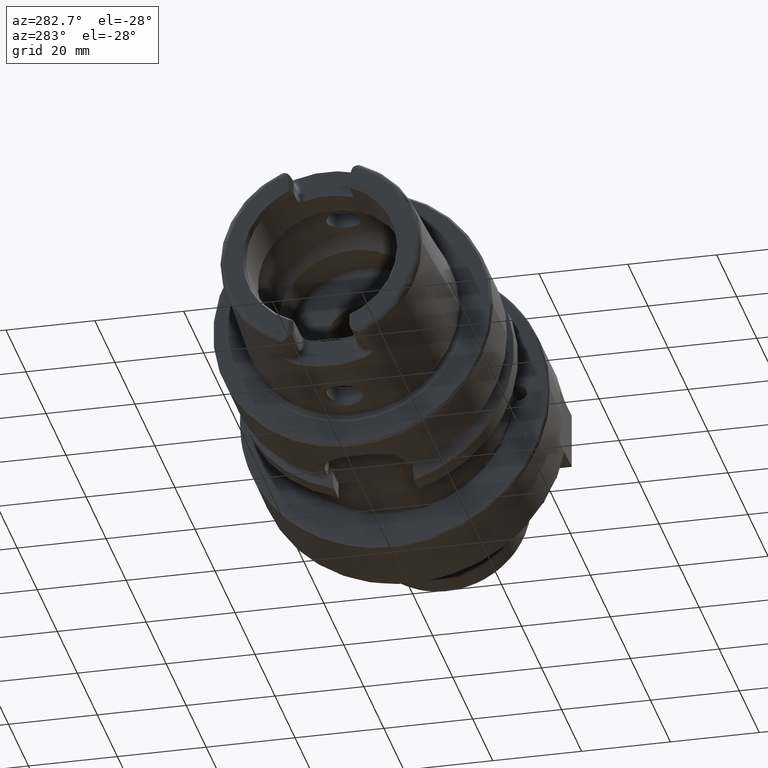
[diagram: clean part render]
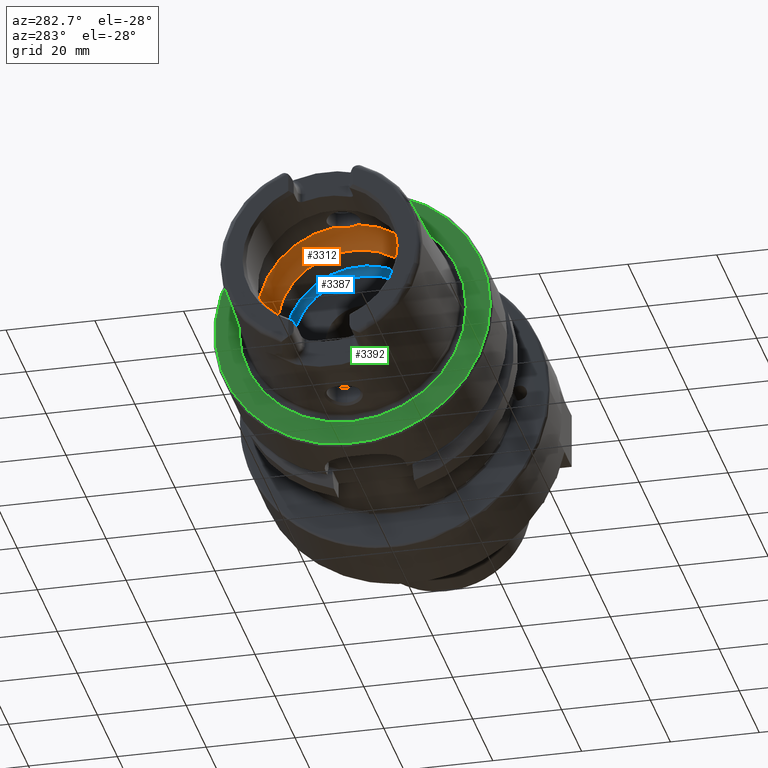
[diagram: same view with three faces highlighted in distinct colors, each labeled with its STEP entity id]
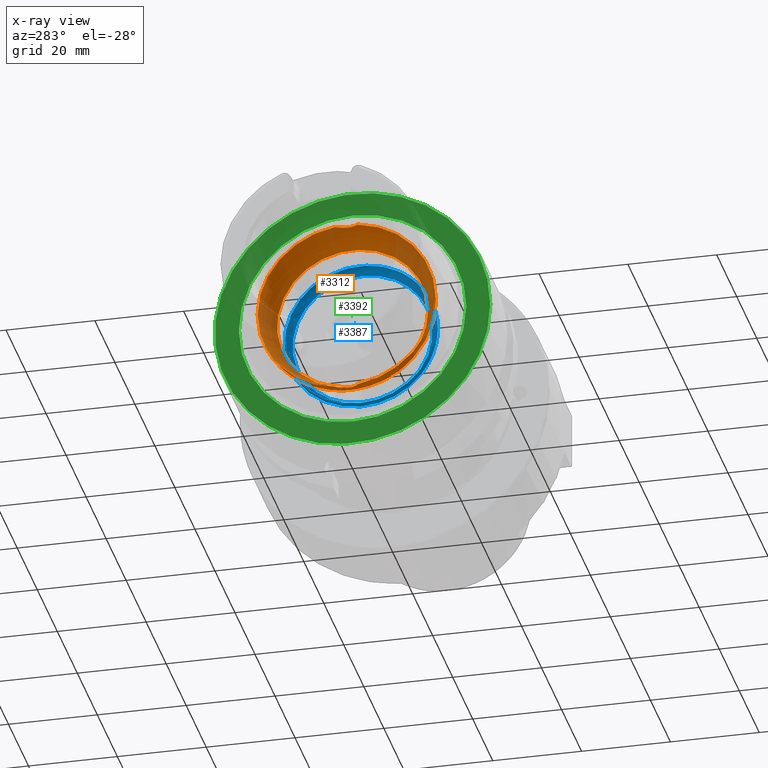
[diagram: x-ray of the same camera — body ghosted, the three highlighted faces saturated]
A machine part, auxiliary view with three faces highlighted in distinct colors.
The next image is the same camera in x-ray (body ghosted, the three faces saturated) — at least one of them is partly hidden behind the body in this view.
Their STEP definitions:

[orange] entity #3312 — the highlighted toroidal blend (fillet) surface has major radius 12 mm and minor (blend) radius 8 mm.
#96=TOROIDAL_SURFACE('',#3704,12.,8.);
#741=FACE_OUTER_BOUND('',#949,.T.);
#949=EDGE_LOOP('',(#2562,#2563,#2564,#2565,#2566,#2567,#2568,#2569,#2570,
#2571,#2572));
#1170=CIRCLE('',#3699,20.);
#1173=CIRCLE('',#3702,20.);
#1174=CIRCLE('',#3703,20.);
#1175=CIRCLE('',#3705,17.);
#1176=CIRCLE('',#3706,17.);
#1177=CIRCLE('',#3707,8.);
#1331=B_SPLINE_CURVE_WITH_KNOTS('',3,(#6001,#6002,#6003,#6004,#6005,#6006,
#6007,#6008,#6009,#6010,#6011,#6012),.UNSPECIFIED.,.F.,.F.,(4,2,2,2,2,4),
(-0.560647090003115,-0.432465132423936,-0.371738630353782,-0.32053783623797,
-0.287500355516274,-0.280385270121909),.UNSPECIFIED.);
#1333=B_SPLINE_CURVE_WITH_KNOTS('',3,(#6045,#6046,#6047,#6048,#6049,#6050,
#6051,#6052,#6053,#6054),.UNSPECIFIED.,.F.,.F.,(4,2,2,2,4),(-0.280385270121909,
-0.256917987419631,-0.21744735037608,-0.138661357565599,0.),
 .UNSPECIFIED.);
#1336=B_SPLINE_CURVE_WITH_KNOTS('',3,(#6170,#6171,#6172,#6173,#6174,#6175,
#6176,#6177,#6178,#6179,#6180,#6181),.UNSPECIFIED.,.F.,.F.,(4,2,2,2,2,4),
(-0.560647090003256,-0.432465132424011,-0.371738630353825,-0.32053783623799,
-0.287500355516289,-0.280385270121924),.UNSPECIFIED.);
#1338=B_SPLINE_CURVE_WITH_KNOTS('',3,(#6214,#6215,#6216,#6217,#6218,#6219,
#6220,#6221,#6222,#6223),.UNSPECIFIED.,.F.,.F.,(4,2,2,2,4),(-0.280385270121924,
-0.256917987419636,-0.217447350376074,-0.138661357565593,0.),
 .UNSPECIFIED.);
#1513=VERTEX_POINT('',#5998);
#1514=VERTEX_POINT('',#6000);
#1515=VERTEX_POINT('',#6013);
#1518=VERTEX_POINT('',#6168);
#1519=VERTEX_POINT('',#6169);
#1520=VERTEX_POINT('',#6182);
#1521=VERTEX_POINT('',#6226);
#1524=VERTEX_POINT('',#6236);
#1525=VERTEX_POINT('',#6237);
#1899=EDGE_CURVE('',#1514,#1513,#1331,.T.);
#1901=EDGE_CURVE('',#1513,#1515,#1333,.T.);
#1905=EDGE_CURVE('',#1518,#1519,#1336,.T.);
#1907=EDGE_CURVE('',#1519,#1520,#1338,.T.);
#1909=EDGE_CURVE('',#1521,#1518,#1170,.T.);
#1913=EDGE_CURVE('',#1515,#1521,#1173,.T.);
#1914=EDGE_CURVE('',#1520,#1514,#1174,.T.);
#1915=EDGE_CURVE('',#1524,#1525,#1175,.T.);
#1916=EDGE_CURVE('',#1525,#1524,#1176,.T.);
#1917=EDGE_CURVE('',#1525,#1513,#1177,.T.);
#2562=ORIENTED_EDGE('',*,*,#1915,.F.);
#2563=ORIENTED_EDGE('',*,*,#1916,.F.);
#2564=ORIENTED_EDGE('',*,*,#1917,.T.);
#2565=ORIENTED_EDGE('',*,*,#1901,.T.);
#2566=ORIENTED_EDGE('',*,*,#1913,.T.);
#2567=ORIENTED_EDGE('',*,*,#1909,.T.);
#2568=ORIENTED_EDGE('',*,*,#1905,.T.);
#2569=ORIENTED_EDGE('',*,*,#1907,.T.);
#2570=ORIENTED_EDGE('',*,*,#1914,.T.);
#2571=ORIENTED_EDGE('',*,*,#1899,.T.);
#2572=ORIENTED_EDGE('',*,*,#1917,.F.);
#3312=ADVANCED_FACE('',(#741),#96,.F.);
#3699=AXIS2_PLACEMENT_3D('',#6227,#4337,#4338);
#3702=AXIS2_PLACEMENT_3D('',#6233,#4344,#4345);
#3703=AXIS2_PLACEMENT_3D('',#6234,#4346,#4347);
#3704=AXIS2_PLACEMENT_3D('',#6235,#4348,#4349);
#3705=AXIS2_PLACEMENT_3D('',#6238,#4350,#4351);
#3706=AXIS2_PLACEMENT_3D('',#6239,#4352,#4353);
#3707=AXIS2_PLACEMENT_3D('',#6240,#4354,#4355);
#4337=DIRECTION('center_axis',(-1.,0.,0.));
#4338=DIRECTION('ref_axis',(0.,0.,1.));
#4344=DIRECTION('center_axis',(-1.,0.,0.));
#4345=DIRECTION('ref_axis',(0.,0.,1.));
#4346=DIRECTION('center_axis',(-1.,0.,0.));
#4347=DIRECTION('ref_axis',(0.,0.,1.));
#4348=DIRECTION('center_axis',(-1.,0.,0.));
#4349=DIRECTION('ref_axis',(0.,0.,1.));
#4350=DIRECTION('center_axis',(-1.,0.,0.));
#4351=DIRECTION('ref_axis',(0.,0.,1.));
#4352=DIRECTION('center_axis',(-1.,0.,0.));
#4353=DIRECTION('ref_axis',(0.,0.,1.));
#4354=DIRECTION('center_axis',(0.,1.,-1.22464679914735E-16));
#4355=DIRECTION('ref_axis',(0.,-1.22464679914735E-16,-1.));
#5998=CARTESIAN_POINT('',(-5.25,3.07683831259085E-16,-19.9378825251564));
#6000=CARTESIAN_POINT('',(-6.2449979983984,2.54410376580264,-19.8375284758165));
#6001=CARTESIAN_POINT('Ctrl Pts',(-6.2449979983984,2.54410376580263,-19.8375284758165));
#6002=CARTESIAN_POINT('Ctrl Pts',(-5.9563832733696,2.23156378381208,-19.877610794847));
#6003=CARTESIAN_POINT('Ctrl Pts',(-5.72238184052007,1.87139505615745,-19.9007586679726));
#6004=CARTESIAN_POINT('Ctrl Pts',(-5.47415257397377,1.29299577523533,-19.9221291461079));
#6005=CARTESIAN_POINT('Ctrl Pts',(-5.40951125063364,1.10084807786171,-19.9269865934584));
#6006=CARTESIAN_POINT('Ctrl Pts',(-5.31953029252225,0.738763665580492,-19.9333991732415));
#6007=CARTESIAN_POINT('Ctrl Pts',(-5.28971989928313,0.57048989328573,-19.9353426103026));
#6008=CARTESIAN_POINT('Ctrl Pts',(-5.25970604483208,0.291260075331645,-19.9372753146995));
#6009=CARTESIAN_POINT('Ctrl Pts',(-5.25276504295341,0.181279004510485,-19.9377089305339));
#6010=CARTESIAN_POINT('Ctrl Pts',(-5.25022501552319,0.0474369436209427,
-19.9378684144199));
#6011=CARTESIAN_POINT('Ctrl Pts',(-5.25,0.0237178817918345,-19.9378825251564));
#6012=CARTESIAN_POINT('Ctrl Pts',(-5.25,1.73633857888389E-16,-19.9378825251564));
#6013=CARTESIAN_POINT('',(-6.2449979983984,-2.54410376580264,-19.8375284758165));
#6045=CARTESIAN_POINT('Ctrl Pts',(-5.25,1.73633857888389E-16,-19.9378825251564));
#6046=CARTESIAN_POINT('Ctrl Pts',(-5.25,-0.0782273446147222,-19.9378825251564));
#6047=CARTESIAN_POINT('Ctrl Pts',(-5.25244785081342,-0.15644185230388,-19.9377296492436));
#6048=CARTESIAN_POINT('Ctrl Pts',(-5.26557067654327,-0.365860616871457,
-19.9368989370107));
#6049=CARTESIAN_POINT('Ctrl Pts',(-5.2807081654794,-0.496671474530444,-19.9359382432917));
#6050=CARTESIAN_POINT('Ctrl Pts',(-5.34656166936447,-0.885366242555149,
-19.9315392091305));
#6051=CARTESIAN_POINT('Ctrl Pts',(-5.41752174824152,-1.13897710923821,-19.9266508951874));
#6052=CARTESIAN_POINT('Ctrl Pts',(-5.68473945553282,-1.81246400136134,-19.9044561094296));
#6053=CARTESIAN_POINT('Ctrl Pts',(-5.93280828188796,-2.20603449935731,-19.880884849314));
#6054=CARTESIAN_POINT('Ctrl Pts',(-6.2449979983984,-2.54410376580263,-19.8375284758165));
#6168=CARTESIAN_POINT('',(-6.2449979983984,-2.54410376580264,19.8375284758165));
#6169=CARTESIAN_POINT('',(-5.25,4.81156178856766E-16,19.9378825251564));
#6170=CARTESIAN_POINT('Ctrl Pts',(-6.2449979983984,-2.54410376580264,19.8375284758165));
#6171=CARTESIAN_POINT('Ctrl Pts',(-5.9563832733696,-2.23156378381209,19.877610794847));
#6172=CARTESIAN_POINT('Ctrl Pts',(-5.72238184052007,-1.87139505615746,19.9007586679726));
#6173=CARTESIAN_POINT('Ctrl Pts',(-5.47415257397376,-1.29299577523533,19.9221291461079));
#6174=CARTESIAN_POINT('Ctrl Pts',(-5.40951125063363,-1.10084807786172,19.9269865934584));
#6175=CARTESIAN_POINT('Ctrl Pts',(-5.31953029252225,-0.738763665580501,
19.9333991732415));
#6176=CARTESIAN_POINT('Ctrl Pts',(-5.28971989928313,-0.570489893285745,
19.9353426103026));
#6177=CARTESIAN_POINT('Ctrl Pts',(-5.25970604483207,-0.291260075331669,
19.9372753146995));
#6178=CARTESIAN_POINT('Ctrl Pts',(-5.2527650429534,-0.181279004510531,19.9377089305339));
#6179=CARTESIAN_POINT('Ctrl Pts',(-5.25022501552319,-0.0474369436209401,
19.9378684144199));
#6180=CARTESIAN_POINT('Ctrl Pts',(-5.25,-0.0237178817918311,19.9378825251564));
#6181=CARTESIAN_POINT('Ctrl Pts',(-5.25,5.15920899939407E-16,19.9378825251564));
#6182=CARTESIAN_POINT('',(-6.2449979983984,2.54410376580264,19.8375284758165));
#6214=CARTESIAN_POINT('Ctrl Pts',(-5.25,5.15920899939407E-16,19.9378825251564));
#6215=CARTESIAN_POINT('Ctrl Pts',(-5.25,0.0782273446147462,19.9378825251564));
#6216=CARTESIAN_POINT('Ctrl Pts',(-5.25244785081342,0.156441852303891,19.9377296492436));
#6217=CARTESIAN_POINT('Ctrl Pts',(-5.26557067654326,0.36586061687142,19.9368989370107));
#6218=CARTESIAN_POINT('Ctrl Pts',(-5.28070816547939,0.496671474530425,19.9359382432917));
#6219=CARTESIAN_POINT('Ctrl Pts',(-5.34656166936446,0.885366242555101,19.9315392091305));
#6220=CARTESIAN_POINT('Ctrl Pts',(-5.41752174824151,1.13897710923819,19.9266508951874));
#6221=CARTESIAN_POINT('Ctrl Pts',(-5.68473945553283,1.81246400136138,19.9044561094296));
#6222=CARTESIAN_POINT('Ctrl Pts',(-5.93280828188797,2.20603449935733,19.880884849314));
#6223=CARTESIAN_POINT('Ctrl Pts',(-6.2449979983984,2.54410376580264,19.8375284758165));
#6226=CARTESIAN_POINT('',(-6.2449979983984,-20.,2.44929359829471E-15));
#6227=CARTESIAN_POINT('Origin',(-6.2449979983984,0.,0.));
#6233=CARTESIAN_POINT('Origin',(-6.2449979983984,0.,0.));
#6234=CARTESIAN_POINT('Origin',(-6.2449979983984,0.,0.));
#6235=CARTESIAN_POINT('Origin',(-6.2449979983984,0.,0.));
#6236=CARTESIAN_POINT('',(0.,-17.,2.0818995585505E-15));
#6237=CARTESIAN_POINT('',(0.,-2.0818995585505E-15,-17.));
#6238=CARTESIAN_POINT('Origin',(0.,0.,0.));
#6239=CARTESIAN_POINT('Origin',(0.,0.,0.));
#6240=CARTESIAN_POINT('Origin',(-6.2449979983984,-1.46957615897682E-15,
-12.));

[blue] entity #3387 — the highlighted toroidal blend (fillet) surface has major radius 15.75 mm and minor (blend) radius 1.5 mm.
#114=TOROIDAL_SURFACE('',#3847,15.75,1.5);
#816=FACE_OUTER_BOUND('',#1028,.T.);
#1028=EDGE_LOOP('',(#2964,#2965,#2966,#2967,#2968));
#1242=CIRCLE('',#3846,15.75);
#1243=CIRCLE('',#3848,1.5);
#1244=CIRCLE('',#3849,17.);
#1245=CIRCLE('',#3850,17.);
#1621=VERTEX_POINT('',#6873);
#1622=VERTEX_POINT('',#6876);
#1623=VERTEX_POINT('',#6878);
#2083=EDGE_CURVE('',#1621,#1621,#1242,.T.);
#2084=EDGE_CURVE('',#1621,#1622,#1243,.T.);
#2085=EDGE_CURVE('',#1622,#1623,#1244,.T.);
#2086=EDGE_CURVE('',#1623,#1622,#1245,.T.);
#2964=ORIENTED_EDGE('',*,*,#2083,.F.);
#2965=ORIENTED_EDGE('',*,*,#2084,.T.);
#2966=ORIENTED_EDGE('',*,*,#2085,.T.);
#2967=ORIENTED_EDGE('',*,*,#2086,.T.);
#2968=ORIENTED_EDGE('',*,*,#2084,.F.);
#3387=ADVANCED_FACE('',(#816),#114,.F.);
#3846=AXIS2_PLACEMENT_3D('',#6874,#4689,#4690);
#3847=AXIS2_PLACEMENT_3D('',#6875,#4691,#4692);
#3848=AXIS2_PLACEMENT_3D('',#6877,#4693,#4694);
#3849=AXIS2_PLACEMENT_3D('',#6879,#4695,#4696);
#3850=AXIS2_PLACEMENT_3D('',#6880,#4697,#4698);
#4689=DIRECTION('center_axis',(-1.,0.,0.));
#4690=DIRECTION('ref_axis',(0.,0.,1.));
#4691=DIRECTION('center_axis',(-1.,0.,0.));
#4692=DIRECTION('ref_axis',(0.,0.,1.));
#4693=DIRECTION('center_axis',(0.,1.,-1.22464679914735E-16));
#4694=DIRECTION('ref_axis',(0.,-1.22464679914735E-16,-1.));
#4695=DIRECTION('center_axis',(-1.,0.,0.));
#4696=DIRECTION('ref_axis',(0.,0.,1.));
#4697=DIRECTION('center_axis',(-1.,0.,0.));
#4698=DIRECTION('ref_axis',(0.,0.,1.));
#6873=CARTESIAN_POINT('',(10.,-1.92881870865708E-15,-15.75));
#6874=CARTESIAN_POINT('Origin',(10.,0.,0.));
#6875=CARTESIAN_POINT('Origin',(8.5,0.,0.));
#6876=CARTESIAN_POINT('',(7.67084380241115,-2.0818995585505E-15,-17.));
#6877=CARTESIAN_POINT('Origin',(8.5,-1.92881870865708E-15,-15.75));
#6878=CARTESIAN_POINT('',(7.67084380241115,-17.,2.0818995585505E-15));
#6879=CARTESIAN_POINT('Origin',(7.67084380241115,0.,0.));
#6880=CARTESIAN_POINT('Origin',(7.67084380241115,0.,0.));

[green] entity #3392 — the highlighted planar face has unit normal (-1, 0, 0).
#138=FACE_BOUND('',#1034,.T.);
#646=PLANE('',#3861);
#821=FACE_OUTER_BOUND('',#1033,.T.);
#1033=EDGE_LOOP('',(#2992));
#1034=EDGE_LOOP('',(#2993));
#1251=CIRCLE('',#3860,25.5879092835167);
#1252=CIRCLE('',#3862,31.);
#1628=VERTEX_POINT('',#6896);
#1629=VERTEX_POINT('',#6900);
#2095=EDGE_CURVE('',#1628,#1628,#1251,.T.);
#2096=EDGE_CURVE('',#1629,#1629,#1252,.T.);
#2992=ORIENTED_EDGE('',*,*,#2096,.F.);
#2993=ORIENTED_EDGE('',*,*,#2095,.T.);
#3392=ADVANCED_FACE('',(#821,#138),#646,.T.);
#3860=AXIS2_PLACEMENT_3D('',#6898,#4720,#4721);
#3861=AXIS2_PLACEMENT_3D('',#6899,#4722,#4723);
#3862=AXIS2_PLACEMENT_3D('',#6901,#4724,#4725);
#4720=DIRECTION('center_axis',(1.,0.,0.));
#4721=DIRECTION('ref_axis',(0.,0.,-1.));
#4722=DIRECTION('center_axis',(-1.,0.,0.));
#4723=DIRECTION('ref_axis',(0.,0.,1.));
#4724=DIRECTION('center_axis',(1.,0.,0.));
#4725=DIRECTION('ref_axis',(0.,0.,-1.));
#6896=CARTESIAN_POINT('',(-3.55618312575245E-16,-25.5879092835167,-3.13361512009315E-15));
#6898=CARTESIAN_POINT('Origin',(0.,0.,0.));
#6899=CARTESIAN_POINT('Origin',(0.,31.,0.));
#6900=CARTESIAN_POINT('',(-5.89805981832114E-16,-31.,-3.7964050773568E-15));
#6901=CARTESIAN_POINT('Origin',(0.,0.,0.));